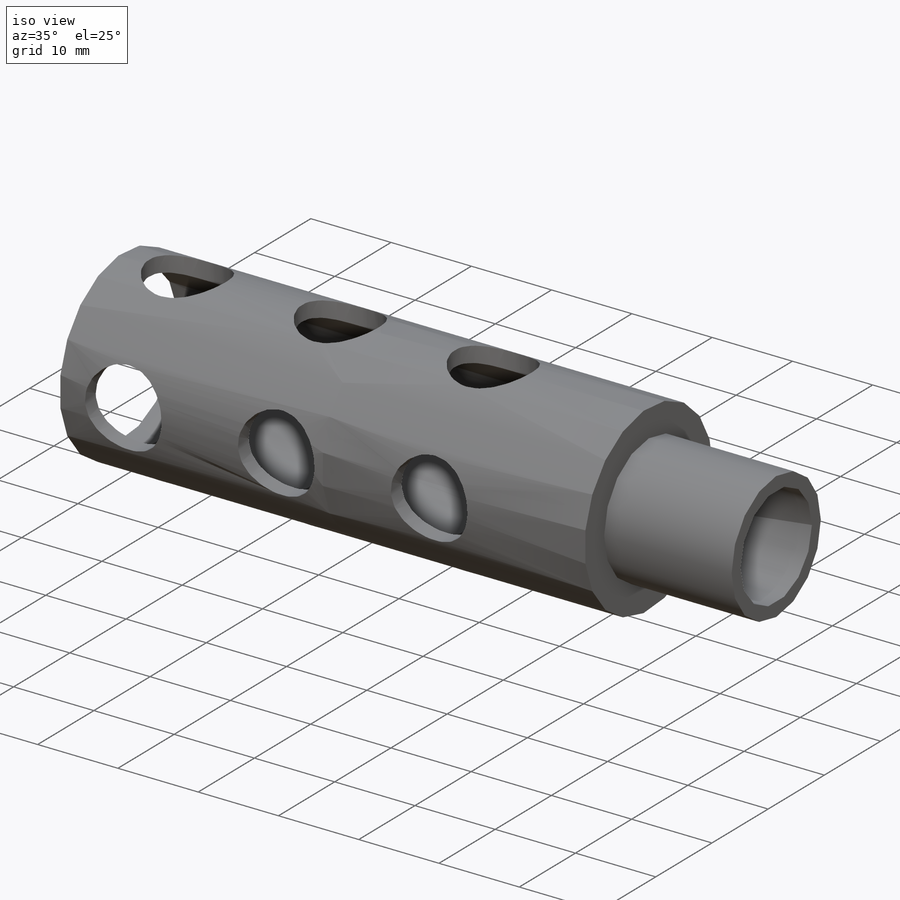
[diagram: iso view]
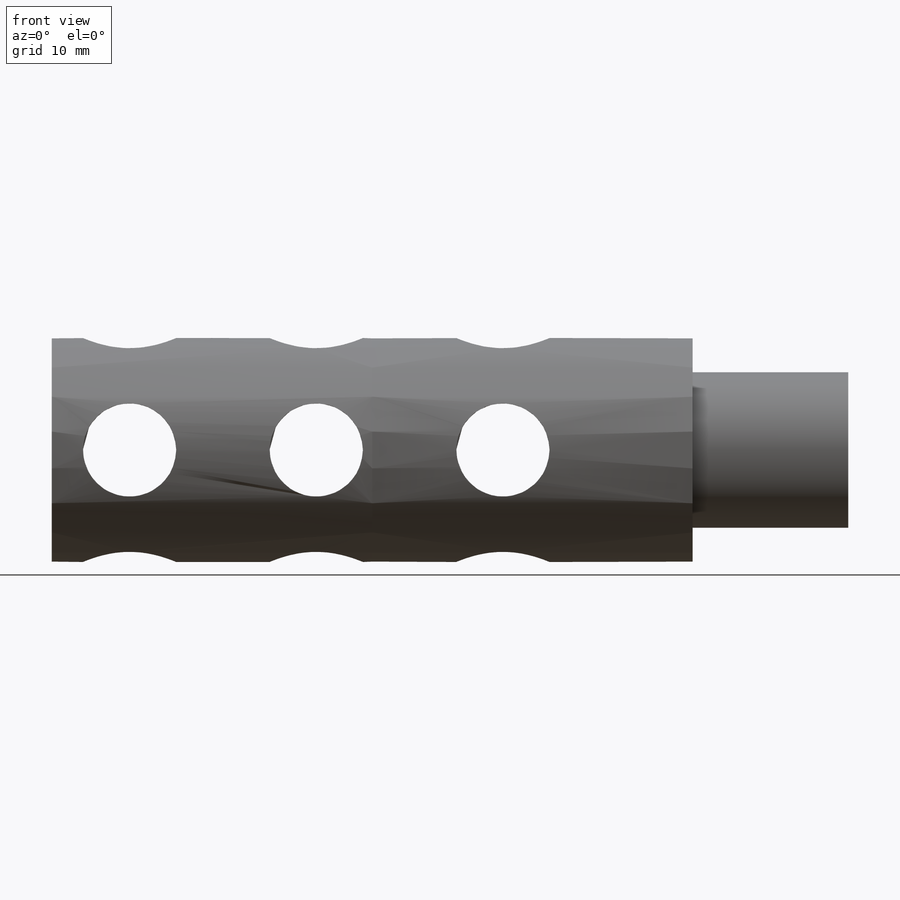
[diagram: front view]
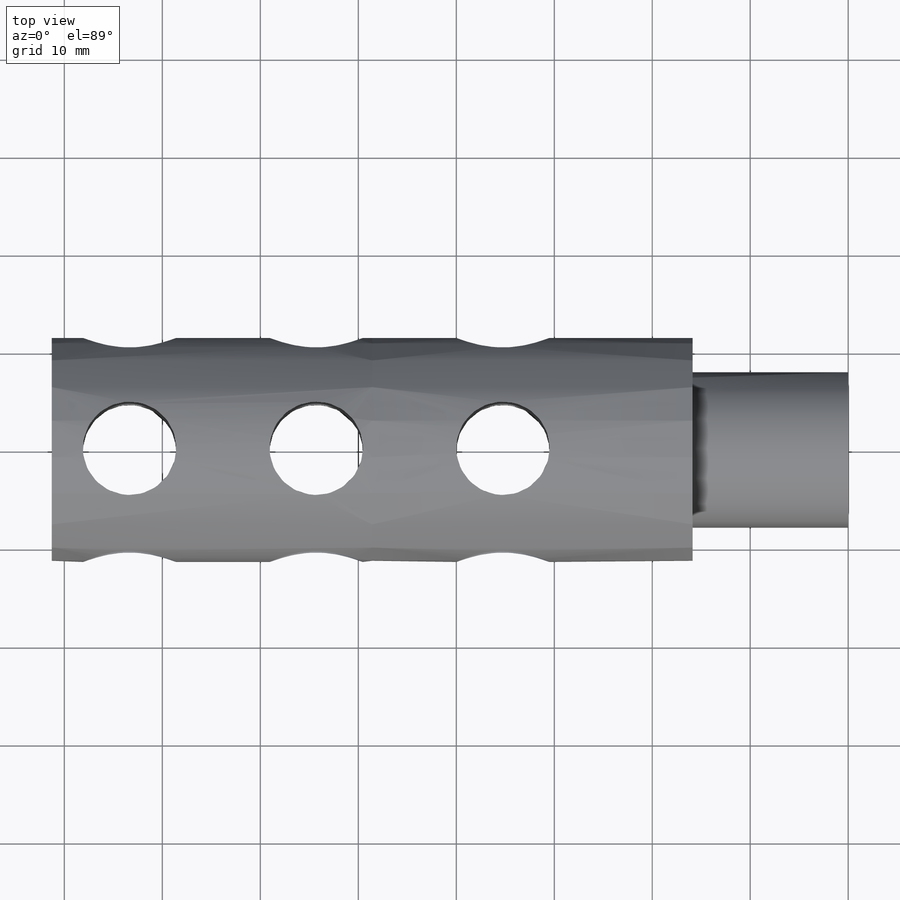
[diagram: top view]
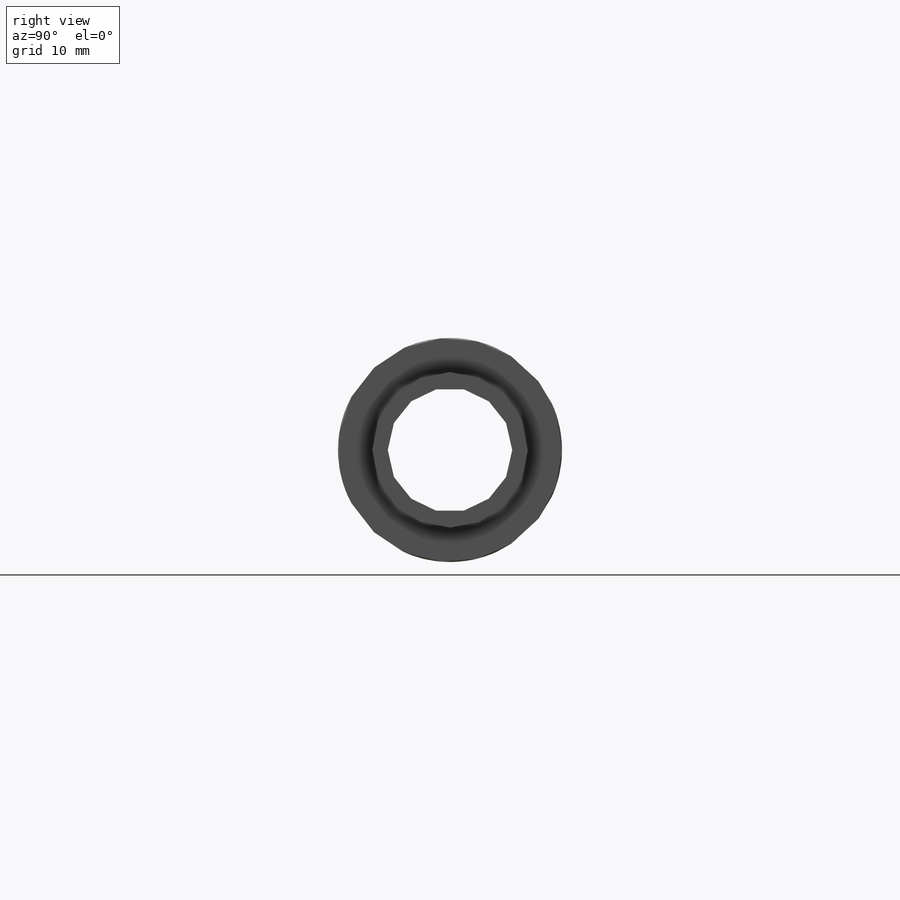
[diagram: right view]
SOLIDWORKS PART (.sldprt)
format: sldprt  version: not decoded by parser v0  size: 276,992 bytes
history: native  units: mm
features: sketch x5, cut_extrude x4, plane x2, pattern_linear x2, material x1, extrude x1 (+11 scaffold rows collapsed)
feature tree (26):
  scaffold x11  (default folders/planes/origin — collapsed)
  material  "6061-T6 (SS)"
  sketch  "Sketch1"  dims[D1=22.86mm D2=12.7mm]
  extrude  "Boss-Extrude1"  Depth=81.28mm
  sketch  "Sketch5"  dims[D1=19.05mm]
  cut_extrude  "Cut-Extrude4"  Depth=57.15mm
  sketch  "Sketch2"  dims[D1=15.875mm D2=22.86mm]
  cut_extrude  "Cut-Extrude1"  Depth=15.875mm
  plane  "Plane1"  Offset=25.4mm
  sketch  "Sketch3"  dims[c1.D1=9.525mm c1.D2=15.875mm c1.D3=15.875mm c1.D4=15.875mm c2.D2=7.9375mm]
  cut_extrude  "Cut-Extrude2"  [1 undecoded]
  pattern_linear  "LPattern1"  Count1=3 Count2=1 Spacing1=19.05mm Spacing2=50mm
  plane  "Plane2"  Offset=25.4mm
  sketch  "Sketch4"  dims[D2=9.525mm D1=7.9375mm D3=65.405mm]
  cut_extrude  "Cut-Extrude3"  [1 undecoded]
  pattern_linear  "LPattern2"  Count1=3 Count2=1 Spacing1=19.05mm Spacing2=50mm
decode coverage: 10 of 12 modeling features carry decoded parameters
note: 2 parameter values undecoded
note: suppression state not decoded; provenance and decode notes live in map.json
